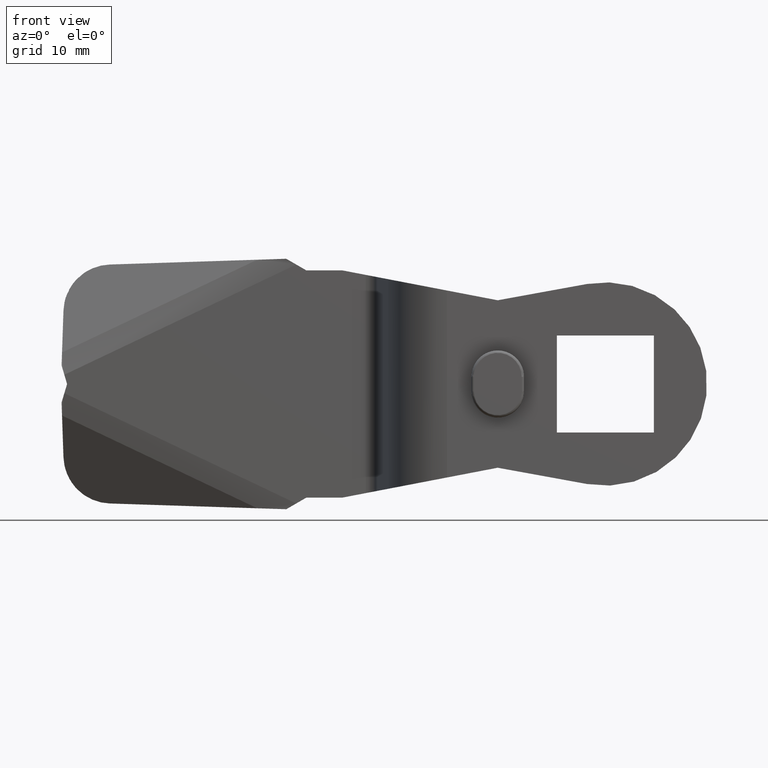
[diagram: clean part render]
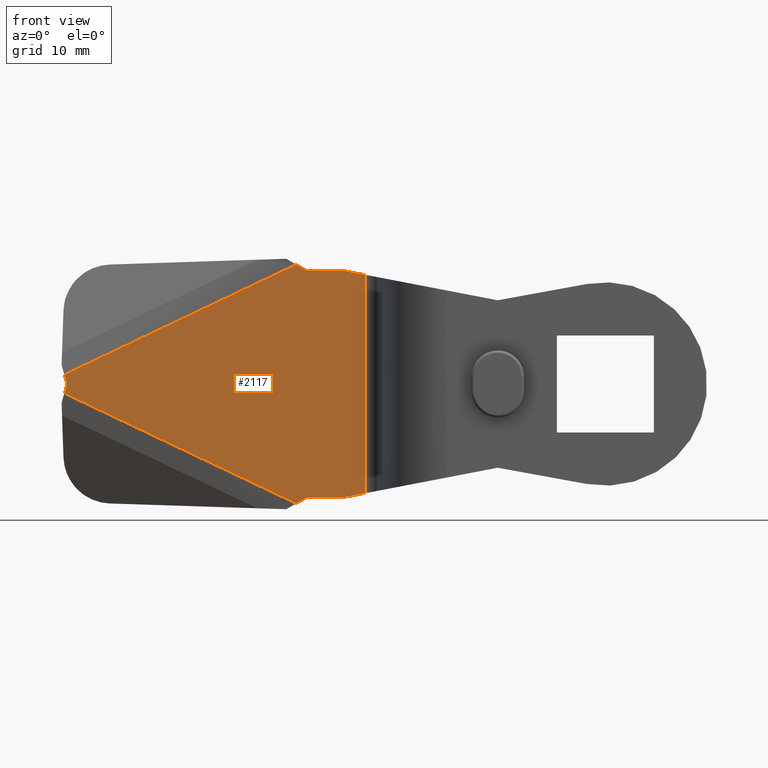
[diagram: same view with one face highlighted and labeled with its STEP entity id]
A machine part, front view. The second image highlights one B-rep face of the part: STEP entity #2117.
In plain terms, the highlighted face is a freeform B-spline surface patch.
Its self-contained STEP definition (entity closure, byte-faithful):
#674=CARTESIAN_POINT('',(-20.037724925796649,-4.000000189989685,9.122639659082189));
#675=VERTEX_POINT('',#674);
#691=CARTESIAN_POINT('',(-20.037724925796649,-4.000000189989685,-9.122639659082200));
#692=VERTEX_POINT('',#691);
#693=CARTESIAN_POINT('',(-20.037724925796649,-4.000000189989685,-9.122639659082200));
#694=CARTESIAN_POINT('',(-20.037724925796649,-4.000000189989685,9.122639659082189));
#695=QUASI_UNIFORM_CURVE('',1,(#693,#694),.UNSPECIFIED.,.F.,.U.);
#696=EDGE_CURVE('',#692,#675,#695,.T.);
#1155=CARTESIAN_POINT('',(-45.230142670143103,-4.000000189989685,0.773577170564547));
#1156=VERTEX_POINT('',#1155);
#1170=CARTESIAN_POINT('',(-25.838711795582402,-4.000000189989685,9.984506835978541));
#1171=VERTEX_POINT('',#1170);
#1172=CARTESIAN_POINT('',(-25.838711795582402,-4.000000189989685,9.984506835978541));
#1173=CARTESIAN_POINT('',(-45.230142670143103,-4.000000189989685,0.773577170564547));
#1174=QUASI_UNIFORM_CURVE('',1,(#1172,#1173),.UNSPECIFIED.,.F.,.U.);
#1175=EDGE_CURVE('',#1171,#1156,#1174,.T.);
#1246=CARTESIAN_POINT('',(-25.838711795582501,-4.000000189989685,-9.984506835978550));
#1247=VERTEX_POINT('',#1246);
#1261=CARTESIAN_POINT('',(-45.230142670142307,-4.000000189989685,-0.773577170565086));
#1262=VERTEX_POINT('',#1261);
#1263=CARTESIAN_POINT('',(-45.230142670142307,-4.000000189989685,-0.773577170565086));
#1264=CARTESIAN_POINT('',(-25.838711795582501,-4.000000189989685,-9.984506835978550));
#1265=QUASI_UNIFORM_CURVE('',1,(#1263,#1264),.UNSPECIFIED.,.F.,.U.);
#1266=EDGE_CURVE('',#1262,#1247,#1265,.T.);
#1289=CARTESIAN_POINT('',(-45.000002137384797,-4.000000189989685,-1.136868E-013));
#1290=VERTEX_POINT('',#1289);
#1291=CARTESIAN_POINT('',(-45.230142670143103,-4.000000189989685,0.773577170564547));
#1292=CARTESIAN_POINT('',(-45.000002137384797,-4.000000189989685,-1.136868E-013));
#1293=QUASI_UNIFORM_CURVE('',1,(#1291,#1292),.UNSPECIFIED.,.F.,.U.);
#1294=EDGE_CURVE('',#1156,#1290,#1293,.T.);
#1339=CARTESIAN_POINT('',(-45.000002137384797,-4.000000189989685,-1.136868E-013));
#1340=CARTESIAN_POINT('',(-45.230142670142307,-4.000000189989685,-0.773577170565086));
#1341=QUASI_UNIFORM_CURVE('',1,(#1339,#1340),.UNSPECIFIED.,.F.,.U.);
#1342=EDGE_CURVE('',#1290,#1262,#1341,.T.);
#1701=CARTESIAN_POINT('',(-22.000001044943449,-4.000000189989915,-9.500000451225802));
#1702=VERTEX_POINT('',#1701);
#1703=CARTESIAN_POINT('',(-20.037724925796649,-4.000000189989685,-9.122639659082200));
#1704=CARTESIAN_POINT('',(-22.000001044943449,-4.000000189989915,-9.500000451225802));
#1705=QUASI_UNIFORM_CURVE('',1,(#1703,#1704),.UNSPECIFIED.,.F.,.U.);
#1706=EDGE_CURVE('',#692,#1702,#1705,.T.);
#1772=CARTESIAN_POINT('',(-22.000001044943499,-4.000000189989695,9.500000451225791));
#1773=VERTEX_POINT('',#1772);
#1779=CARTESIAN_POINT('',(-22.000001044943499,-4.000000189989695,9.500000451225791));
#1780=CARTESIAN_POINT('',(-20.037724925796649,-4.000000189989685,9.122639659082189));
#1781=QUASI_UNIFORM_CURVE('',1,(#1779,#1780),.UNSPECIFIED.,.F.,.U.);
#1782=EDGE_CURVE('',#1773,#675,#1781,.T.);
#1880=CARTESIAN_POINT('',(-25.000001187432851,-4.000000189989695,9.500000451225802));
#1881=VERTEX_POINT('',#1880);
#1882=CARTESIAN_POINT('',(-25.838711795582402,-4.000000189989685,9.984506835978541));
#1883=CARTESIAN_POINT('',(-25.000001187432851,-4.000000189989695,9.500000451225802));
#1884=QUASI_UNIFORM_CURVE('',1,(#1882,#1883),.UNSPECIFIED.,.F.,.U.);
#1885=EDGE_CURVE('',#1171,#1881,#1884,.T.);
#1930=CARTESIAN_POINT('',(-25.000001187436251,-4.000000189989695,-9.500000451225791));
#1931=VERTEX_POINT('',#1930);
#1932=CARTESIAN_POINT('',(-25.000001187436251,-4.000000189989695,-9.500000451225791));
#1933=CARTESIAN_POINT('',(-25.838711795582501,-4.000000189989685,-9.984506835978550));
#1934=QUASI_UNIFORM_CURVE('',1,(#1932,#1933),.UNSPECIFIED.,.F.,.U.);
#1935=EDGE_CURVE('',#1931,#1247,#1934,.T.);
#2058=CARTESIAN_POINT('',(-22.000001044943449,-4.000000189989915,-9.500000451225802));
#2059=CARTESIAN_POINT('',(-25.000001187436251,-4.000000189989695,-9.500000451225791));
#2060=QUASI_UNIFORM_CURVE('',1,(#2058,#2059),.UNSPECIFIED.,.F.,.U.);
#2061=EDGE_CURVE('',#1702,#1931,#2060,.T.);
#2072=CARTESIAN_POINT('',(-25.000001187432851,-4.000000189989695,9.500000451225802));
#2073=CARTESIAN_POINT('',(-22.000001044943499,-4.000000189989695,9.500000451225791));
#2074=QUASI_UNIFORM_CURVE('',1,(#2072,#2073),.UNSPECIFIED.,.F.,.U.);
#2075=EDGE_CURVE('',#1881,#1773,#2074,.T.);
#2099=CARTESIAN_POINT('',(-46.488505689547537,-4.000000189989685,-10.981958842734169));
#2100=CARTESIAN_POINT('',(-18.779364834483179,-4.000000189989685,-10.981958842734169));
#2101=CARTESIAN_POINT('',(-46.488505689547537,-4.000000189989685,10.981959556881741));
#2102=CARTESIAN_POINT('',(-18.779364834483179,-4.000000189989685,10.981959556881741));
#2103=B_SPLINE_SURFACE_WITH_KNOTS('',1,1,((#2099,#2101),(#2100,#2102)),.UNSPECIFIED.,.F.,.F.,.U.,(2,2),(2,2),(0.0,27.709140855064369),(0.0,21.963918399615910),.UNSPECIFIED.);
#2104=ORIENTED_EDGE('',*,*,#1706,.F.);
#2105=ORIENTED_EDGE('',*,*,#696,.T.);
#2106=ORIENTED_EDGE('',*,*,#1782,.F.);
#2107=ORIENTED_EDGE('',*,*,#2075,.F.);
#2108=ORIENTED_EDGE('',*,*,#1885,.F.);
#2109=ORIENTED_EDGE('',*,*,#1175,.T.);
#2110=ORIENTED_EDGE('',*,*,#1294,.T.);
#2111=ORIENTED_EDGE('',*,*,#1342,.T.);
#2112=ORIENTED_EDGE('',*,*,#1266,.T.);
#2113=ORIENTED_EDGE('',*,*,#1935,.F.);
#2114=ORIENTED_EDGE('',*,*,#2061,.F.);
#2115=EDGE_LOOP('',(#2104,#2105,#2106,#2107,#2108,#2109,#2110,#2111,#2112,#2113,#2114));
#2116=FACE_OUTER_BOUND('',#2115,.T.);
#2117=ADVANCED_FACE('',(#2116),#2103,.T.);